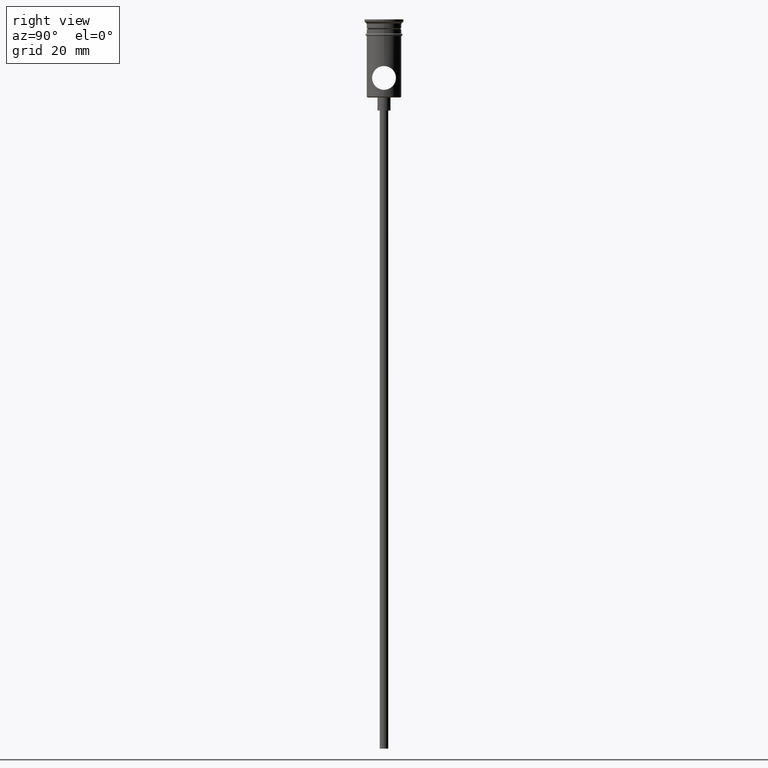
[diagram: clean part render]
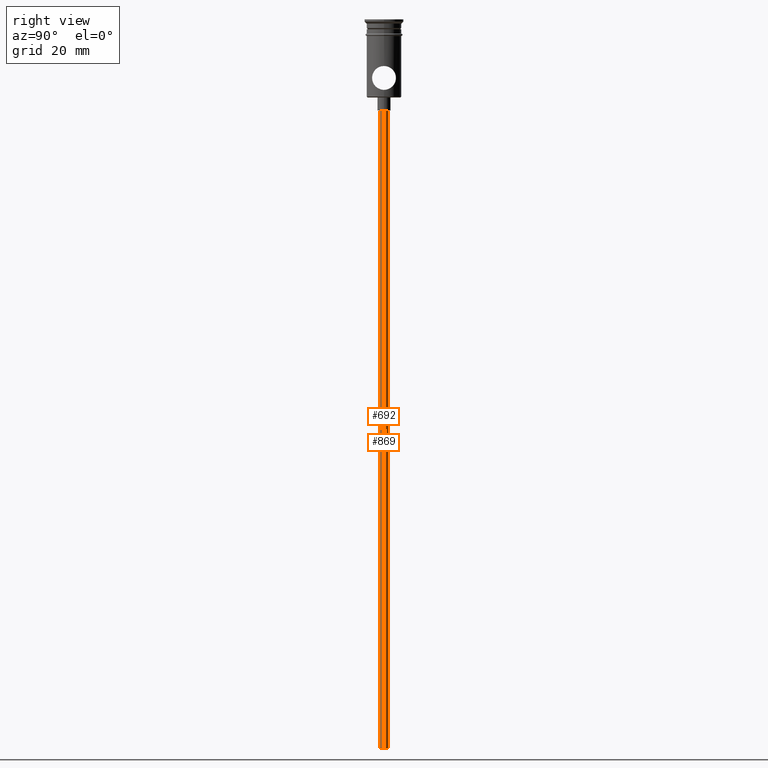
[diagram: same view with one multi-face feature highlighted, each face labeled with its STEP entity id]
A machine part, right view. The highlighted faces form ONE feature: a constant-radius fillet chain: 2 tangent blend faces with common blend radius 1 mm. The faces share edges in the B-rep.
Their STEP definitions:
[1] entity #869 (Cylinder):
#15 = VERTEX_POINT ( 'NONE', #256 ) ;
#31 = DIRECTION ( 'NONE',  ( 1.000000000000000000, 0.000000000000000000, 0.000000000000000000 ) ) ;
#78 = VERTEX_POINT ( 'NONE', #1170 ) ;
#160 = LINE ( 'NONE', #1102, #1325 ) ;
#184 = AXIS2_PLACEMENT_3D ( 'NONE', #1040, #505, #734 ) ;
#243 = CYLINDRICAL_SURFACE ( 'NONE', #684, 0.9999999999999997780 ) ;
#256 = CARTESIAN_POINT ( 'NONE',  ( -0.9999999999999997780, 1.224646799147352961E-16, -167.9999999999999716 ) ) ;
#276 = LINE ( 'NONE', #1154, #1302 ) ;
#289 = ORIENTED_EDGE ( 'NONE', *, *, #1058, .F. ) ;
#371 = CARTESIAN_POINT ( 'NONE',  ( -0.9999999999999997780, 1.224646799147352961E-16, -20.99999999999999645 ) ) ;
#377 = DIRECTION ( 'NONE',  ( -0.000000000000000000, -0.000000000000000000, 1.000000000000000000 ) ) ;
#505 = DIRECTION ( 'NONE',  ( 0.000000000000000000, 0.000000000000000000, -1.000000000000000000 ) ) ;
#592 = ORIENTED_EDGE ( 'NONE', *, *, #1261, .T. ) ;
#640 = VERTEX_POINT ( 'NONE', #371 ) ;
#682 = CARTESIAN_POINT ( 'NONE',  ( 0.000000000000000000, 0.000000000000000000, -167.9999999999999716 ) ) ;
#684 = AXIS2_PLACEMENT_3D ( 'NONE', #682, #377, #31 ) ;
#694 = DIRECTION ( 'NONE',  ( -0.000000000000000000, -0.000000000000000000, 1.000000000000000000 ) ) ;
#719 = EDGE_CURVE ( 'NONE', #640, #1283, #727, .T. ) ;
#727 = CIRCLE ( 'NONE', #912, 0.9999999999999997780 ) ;
#734 = DIRECTION ( 'NONE',  ( -1.000000000000000000, 0.000000000000000000, 0.000000000000000000 ) ) ;
#743 = DIRECTION ( 'NONE',  ( 0.000000000000000000, 0.000000000000000000, -1.000000000000000000 ) ) ;
#869 = ADVANCED_FACE ( 'NONE', ( #1007 ), #243, .T. ) ;
#892 = EDGE_LOOP ( 'NONE', ( #1158, #592, #898, #289 ) ) ;
#898 = ORIENTED_EDGE ( 'NONE', *, *, #719, .T. ) ;
#912 = AXIS2_PLACEMENT_3D ( 'NONE', #1189, #743, #1179 ) ;
#972 = EDGE_CURVE ( 'NONE', #15, #78, #985, .T. ) ;
#985 = CIRCLE ( 'NONE', #184, 0.9999999999999997780 ) ;
#1007 = FACE_OUTER_BOUND ( 'NONE', #892, .T. ) ;
#1040 = CARTESIAN_POINT ( 'NONE',  ( 0.000000000000000000, 0.000000000000000000, -167.9999999999999716 ) ) ;
#1058 = EDGE_CURVE ( 'NONE', #78, #1283, #276, .T. ) ;
#1102 = CARTESIAN_POINT ( 'NONE',  ( -0.9999999999999997780, 1.224646799147352961E-16, -167.9999999999999716 ) ) ;
#1154 = CARTESIAN_POINT ( 'NONE',  ( 0.9999999999999997780, 0.000000000000000000, -167.9999999999999716 ) ) ;
#1158 = ORIENTED_EDGE ( 'NONE', *, *, #972, .F. ) ;
#1170 = CARTESIAN_POINT ( 'NONE',  ( 0.9999999999999997780, 0.000000000000000000, -167.9999999999999716 ) ) ;
#1179 = DIRECTION ( 'NONE',  ( -1.000000000000000000, 0.000000000000000000, 0.000000000000000000 ) ) ;
#1189 = CARTESIAN_POINT ( 'NONE',  ( 0.000000000000000000, 0.000000000000000000, -20.99999999999999645 ) ) ;
#1193 = DIRECTION ( 'NONE',  ( -0.000000000000000000, -0.000000000000000000, 1.000000000000000000 ) ) ;
#1261 = EDGE_CURVE ( 'NONE', #15, #640, #160, .T. ) ;
#1283 = VERTEX_POINT ( 'NONE', #1338 ) ;
#1302 = VECTOR ( 'NONE', #1193, 1000.000000000000000 ) ;
#1325 = VECTOR ( 'NONE', #694, 1000.000000000000000 ) ;
#1338 = CARTESIAN_POINT ( 'NONE',  ( 0.9999999999999997780, 0.000000000000000000, -20.99999999999999645 ) ) ;
[2] entity #692 (Cylinder):
#15 = VERTEX_POINT ( 'NONE', #256 ) ;
#78 = VERTEX_POINT ( 'NONE', #1170 ) ;
#117 = ORIENTED_EDGE ( 'NONE', *, *, #1058, .T. ) ;
#160 = LINE ( 'NONE', #1102, #1325 ) ;
#203 = DIRECTION ( 'NONE',  ( -1.000000000000000000, 0.000000000000000000, 0.000000000000000000 ) ) ;
#256 = CARTESIAN_POINT ( 'NONE',  ( -0.9999999999999997780, 1.224646799147352961E-16, -167.9999999999999716 ) ) ;
#276 = LINE ( 'NONE', #1154, #1302 ) ;
#287 = DIRECTION ( 'NONE',  ( 1.000000000000000000, 0.000000000000000000, 0.000000000000000000 ) ) ;
#303 = CYLINDRICAL_SURFACE ( 'NONE', #1418, 0.9999999999999997780 ) ;
#310 = FACE_OUTER_BOUND ( 'NONE', #1389, .T. ) ;
#371 = CARTESIAN_POINT ( 'NONE',  ( -0.9999999999999997780, 1.224646799147352961E-16, -20.99999999999999645 ) ) ;
#490 = ORIENTED_EDGE ( 'NONE', *, *, #626, .T. ) ;
#570 = AXIS2_PLACEMENT_3D ( 'NONE', #976, #1294, #203 ) ;
#581 = DIRECTION ( 'NONE',  ( -1.000000000000000000, 0.000000000000000000, 0.000000000000000000 ) ) ;
#626 = EDGE_CURVE ( 'NONE', #1283, #640, #1230, .T. ) ;
#640 = VERTEX_POINT ( 'NONE', #371 ) ;
#692 = ADVANCED_FACE ( 'NONE', ( #310 ), #303, .T. ) ;
#694 = DIRECTION ( 'NONE',  ( -0.000000000000000000, -0.000000000000000000, 1.000000000000000000 ) ) ;
#783 = ORIENTED_EDGE ( 'NONE', *, *, #1166, .F. ) ;
#962 = CARTESIAN_POINT ( 'NONE',  ( 0.000000000000000000, 0.000000000000000000, -167.9999999999999716 ) ) ;
#970 = DIRECTION ( 'NONE',  ( -0.000000000000000000, -0.000000000000000000, 1.000000000000000000 ) ) ;
#976 = CARTESIAN_POINT ( 'NONE',  ( 0.000000000000000000, 0.000000000000000000, -167.9999999999999716 ) ) ;
#1008 = DIRECTION ( 'NONE',  ( 0.000000000000000000, 0.000000000000000000, -1.000000000000000000 ) ) ;
#1020 = ORIENTED_EDGE ( 'NONE', *, *, #1261, .F. ) ;
#1058 = EDGE_CURVE ( 'NONE', #78, #1283, #276, .T. ) ;
#1100 = CARTESIAN_POINT ( 'NONE',  ( 0.000000000000000000, 0.000000000000000000, -20.99999999999999645 ) ) ;
#1102 = CARTESIAN_POINT ( 'NONE',  ( -0.9999999999999997780, 1.224646799147352961E-16, -167.9999999999999716 ) ) ;
#1154 = CARTESIAN_POINT ( 'NONE',  ( 0.9999999999999997780, 0.000000000000000000, -167.9999999999999716 ) ) ;
#1166 = EDGE_CURVE ( 'NONE', #78, #15, #1190, .T. ) ;
#1170 = CARTESIAN_POINT ( 'NONE',  ( 0.9999999999999997780, 0.000000000000000000, -167.9999999999999716 ) ) ;
#1190 = CIRCLE ( 'NONE', #570, 0.9999999999999997780 ) ;
#1193 = DIRECTION ( 'NONE',  ( -0.000000000000000000, -0.000000000000000000, 1.000000000000000000 ) ) ;
#1230 = CIRCLE ( 'NONE', #1394, 0.9999999999999997780 ) ;
#1261 = EDGE_CURVE ( 'NONE', #15, #640, #160, .T. ) ;
#1283 = VERTEX_POINT ( 'NONE', #1338 ) ;
#1294 = DIRECTION ( 'NONE',  ( 0.000000000000000000, 0.000000000000000000, -1.000000000000000000 ) ) ;
#1302 = VECTOR ( 'NONE', #1193, 1000.000000000000000 ) ;
#1325 = VECTOR ( 'NONE', #694, 1000.000000000000000 ) ;
#1338 = CARTESIAN_POINT ( 'NONE',  ( 0.9999999999999997780, 0.000000000000000000, -20.99999999999999645 ) ) ;
#1389 = EDGE_LOOP ( 'NONE', ( #1020, #783, #117, #490 ) ) ;
#1394 = AXIS2_PLACEMENT_3D ( 'NONE', #1100, #1008, #581 ) ;
#1418 = AXIS2_PLACEMENT_3D ( 'NONE', #962, #970, #287 ) ;